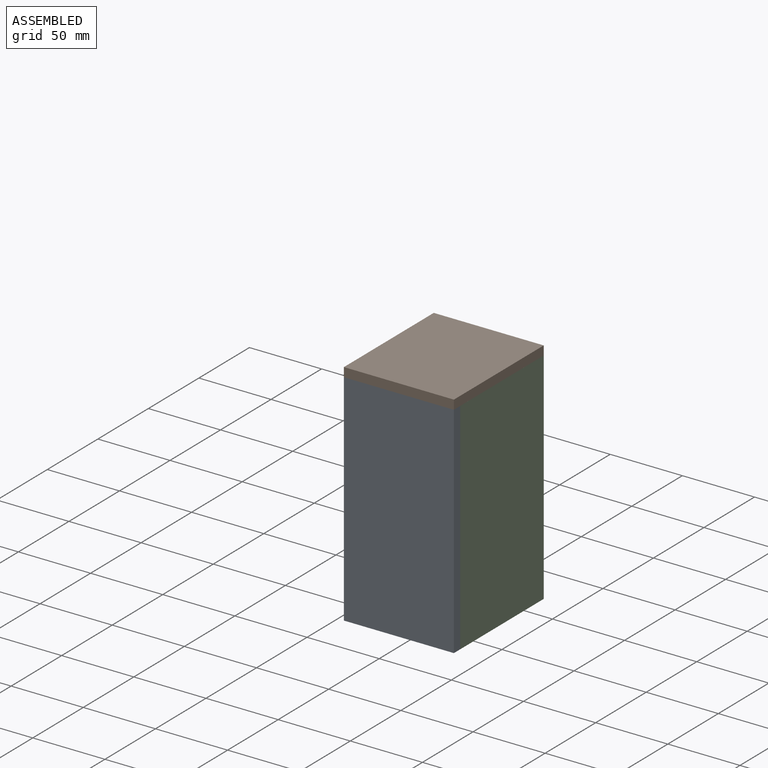
[diagram: assembled view]
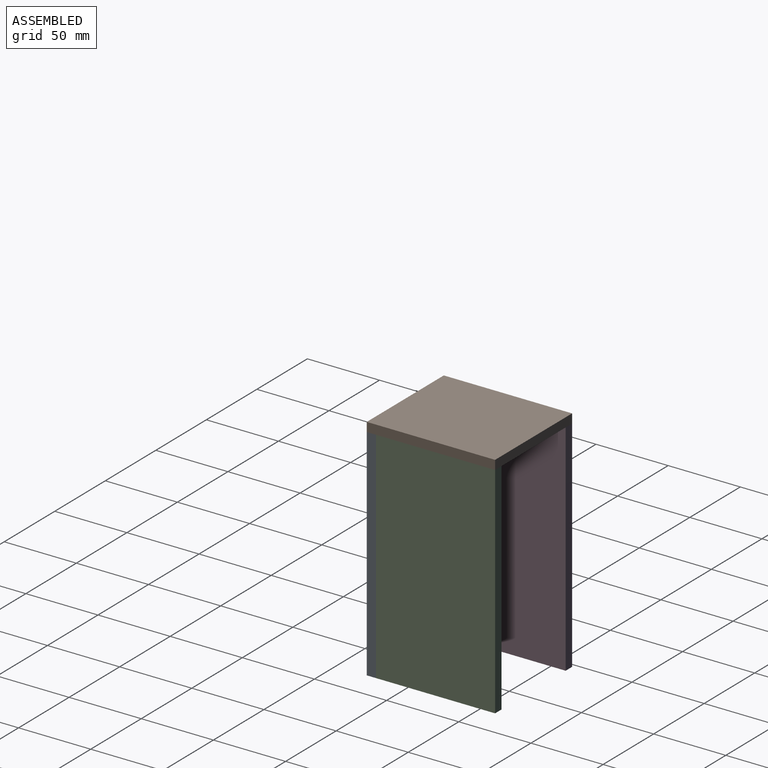
[diagram: assembled view, second angle]
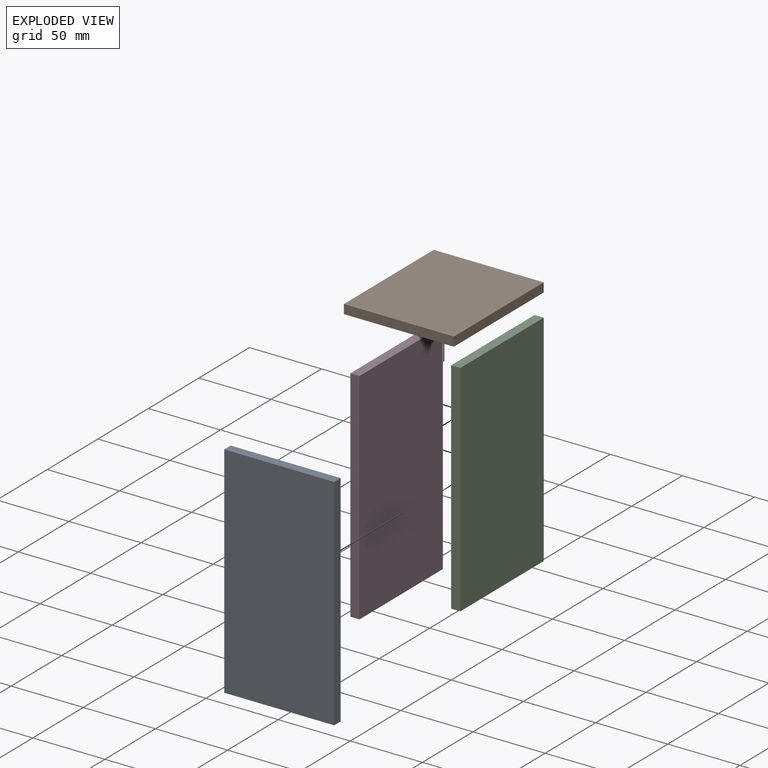
[diagram: exploded view]
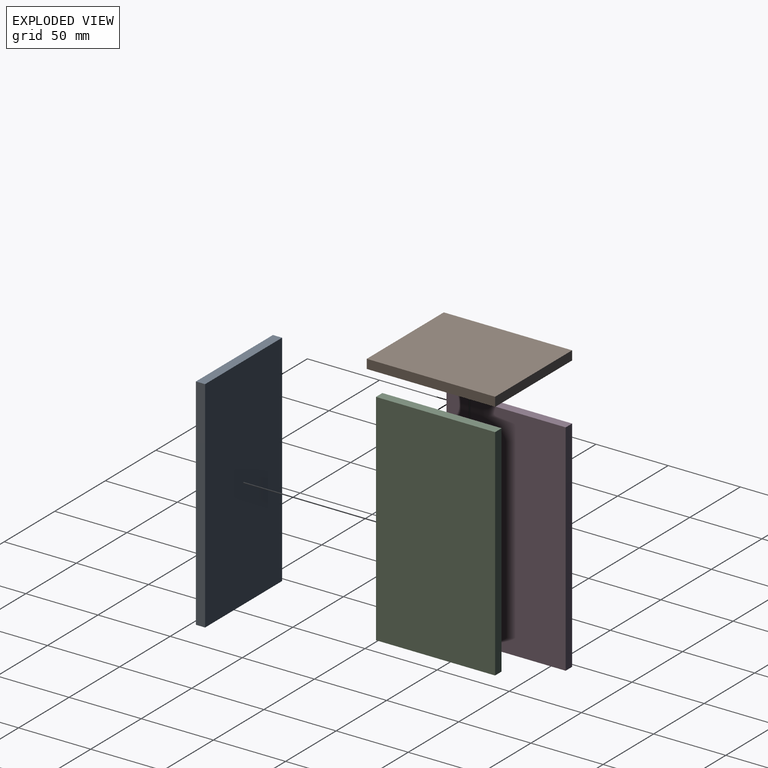
[diagram: exploded view, second angle]
ASSEMBLY  parts=4 mates=9
PART A: 6 faces, bbox 76.2x6.4x152.4 mm
  f0: plane 152.4x6.35mm, normal (1,0,0), area 967.7mm2, adj f1,f3,f4,f5
  f1: plane 76.2x6.35mm, normal (0,0,1), area 483.9mm2, adj f0,f2,f4,f5
  f2: plane 152.4x6.35mm, normal (-1,0,0), area 967.7mm2, adj f1,f3,f4,f5
  f3: plane 76.2x6.35mm, normal (0,0,-1), area 483.9mm2, adj f0,f2,f4,f5
  f4: plane 152.4x76.2mm, normal (0,1,0), area 11612.9mm2, adj f0,f1,f2,f3
  f5: plane 152.4x76.2mm, normal (0,-1,0), area 11612.9mm2, adj f0,f1,f2,f3
PART B: 6 faces, bbox 76.2x6.4x88.9 mm
  f0: plane 88.9x6.35mm, normal (1,0,0), area 564.5mm2, adj f1,f3,f4,f5
  f1: plane 76.2x6.35mm, normal (0,0,1), area 483.9mm2, adj f0,f2,f4,f5
  f2: plane 88.9x6.35mm, normal (-1,0,0), area 564.5mm2, adj f1,f3,f4,f5
  f3: plane 76.2x6.35mm, normal (0,0,-1), area 483.9mm2, adj f0,f2,f4,f5
  f4: plane 88.9x76.2mm, normal (0,-1,0), area 6774.2mm2, adj f0,f1,f2,f3
  f5: plane 88.9x76.2mm, normal (0,1,0), area 6774.2mm2, adj f0,f1,f2,f3
PART C: 6 faces, bbox 82.6x6.4x152.4 mm
  f0: plane 152.4x6.35mm, normal (1,0,0), area 967.7mm2, adj f1,f3,f4,f5
  f1: plane 82.55x6.35mm, normal (0,0,1), area 524.2mm2, adj f0,f2,f4,f5
  f2: plane 152.4x6.35mm, normal (-1,0,0), area 967.7mm2, adj f1,f3,f4,f5
  f3: plane 82.55x6.35mm, normal (0,0,-1), area 524.2mm2, adj f0,f2,f4,f5
  f4: plane 152.4x82.55mm, normal (0,-1,0), area 12580.6mm2, adj f0,f1,f2,f3
  f5: plane 152.4x82.55mm, normal (0,1,0), area 12580.6mm2, adj f0,f1,f2,f3
PART D: same geometry as C
PLACE A t=(96.04,-24.82,37.69)mm
PLACE B rot(axis=(1,0,0),90deg) t=(98.23,19.63,120.24)mm
PLACE C rot(axis=(0.71,0.71,0),180deg) t=(134.14,22.81,37.69)mm
PLACE D rot(axis=(0,0,1),90deg) t=(57.94,22.81,37.69)mm
MATE planar D.f1 <-> A.f1  axis (0,0,1) through (61.12,22.81,113.89)mm
MATE planar B.f2 <-> D.f5  axis (-1,0,0) through (57.94,19.63,117.07)mm
MATE planar C.f3 <-> A.f1  axis (0,0,1) through (130.97,22.81,113.89)mm
MATE planar B.f3 <-> C.f0  axis (0,1,0) through (96.04,64.08,117.07)mm
MATE planar D.f2 <-> A.f4  axis (0,-1,0) through (61.12,-18.47,37.69)mm
MATE planar C.f2 <-> A.f4  axis (0,-1,0) through (130.97,-18.47,37.69)mm
MATE planar D.f5 <-> A.f2  axis (-1,0,0) through (57.94,22.81,37.69)mm
MATE planar A.f1 <-> B.f4  axis (0,0,1) through (96.04,-21.64,113.89)mm
MATE planar C.f5 <-> A.f0  axis (1,0,0) through (134.14,22.81,37.69)mm
